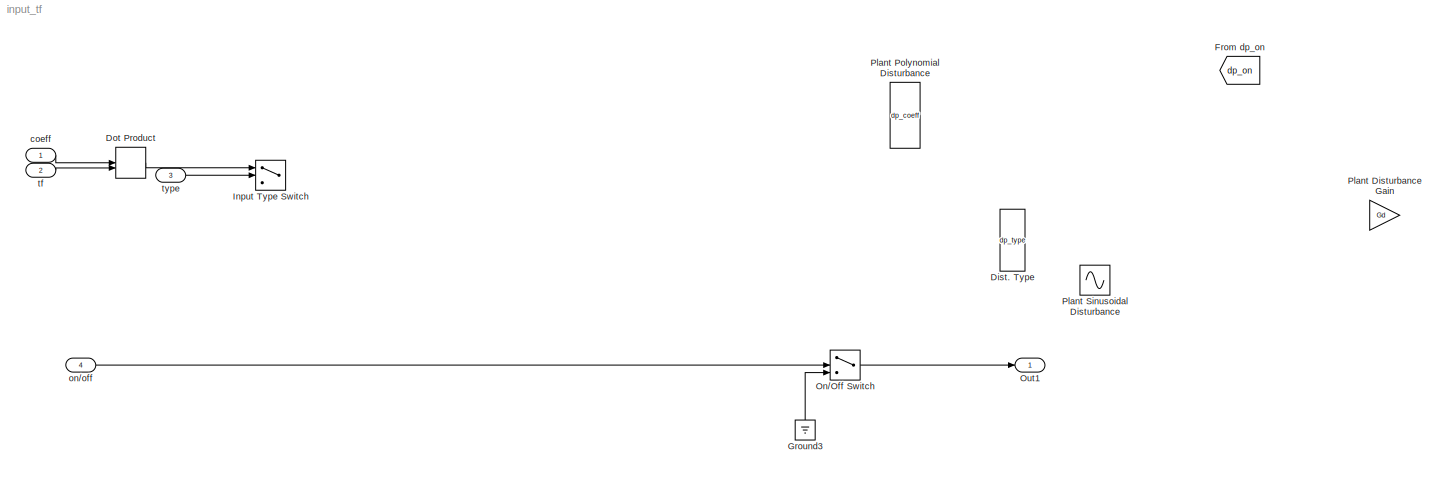
MODEL input_tf
KIND model
BLOCK [Constant] Dist. Type
  SID = 1
  Value = dp_type
BLOCK [DotProduct] Dot Product
  OutDataType = fixdt(1, 16)
  OutDataTypeStr = Inherit: Inherit via internal rule
  OutScaling = 2^-10
  OutputDataTypeScalingMode = Inherit via internal rule
  SID = 14
BLOCK [From] From dp_on
  GotoTag = dp_on
  SID = 2
BLOCK [Ground] Ground3
  SID = 3
BLOCK [Switch] Input Type Switch
  InputSameDT = off
  SID = 4
  SaturateOnIntegerOverflow = off
  Threshold = 2
BLOCK [Switch] On//Off Switch
  InputSameDT = off
  SID = 8
  SaturateOnIntegerOverflow = off
  Threshold = 1
BLOCK [Outport] Out1
  IconDisplay = Port number
  OutDataType = fixdt(1, 16)
  OutScaling = 2^0
  SID = 13
BLOCK [Gain] Plant Disturbance Gain
  Gain = Gd
  OutDataTypeMode = Inherit via internal rule
  OutDataTypeStr = Inherit: Inherit via internal rule
  ParamDataTypeStr = Inherit: Inherit via internal rule
  ParameterDataTypeMode = Inherit via internal rule
  SID = 5
  SaturateOnIntegerOverflow = off
BLOCK [Constant] Plant Polynomial Disturbance
  SID = 6
  Value = dp_coeff
BLOCK [Sin] Plant Sinusoidal Disturbance
  Amplitude = dp_coeff
  Bias = 0
  Frequency = dp_freq
  Offset = 0
  Phase = 0
  Ports = [0, 1]
  SID = 7
  SampleTime = 0
  Samples = 10
BLOCK [Inport] coeff
  IconDisplay = Port number
  OutDataType = fixdt(1, 16)
  OutScaling = 2^0
  SID = 9
BLOCK [Inport] on//off
  IconDisplay = Port number
  OutDataType = fixdt(1, 16)
  OutScaling = 2^0
  Port = 4
  SID = 12
BLOCK [Inport] tf
  IconDisplay = Port number
  OutDataType = fixdt(1, 16)
  OutScaling = 2^0
  Port = 2
  SID = 10
BLOCK [Inport] type
  IconDisplay = Port number
  OutDataType = fixdt(1, 16)
  OutScaling = 2^0
  Port = 3
  SID = 11
LINE Dot Product:1 -> Input Type Switch:1
LINE Ground3:1 -> On//Off Switch:3
LINE On//Off Switch:1 -> Out1:1
LINE coeff:1 -> Dot Product:1
LINE on//off:1 -> On//Off Switch:2
LINE tf:1 -> Dot Product:2
LINE type:1 -> Input Type Switch:2
